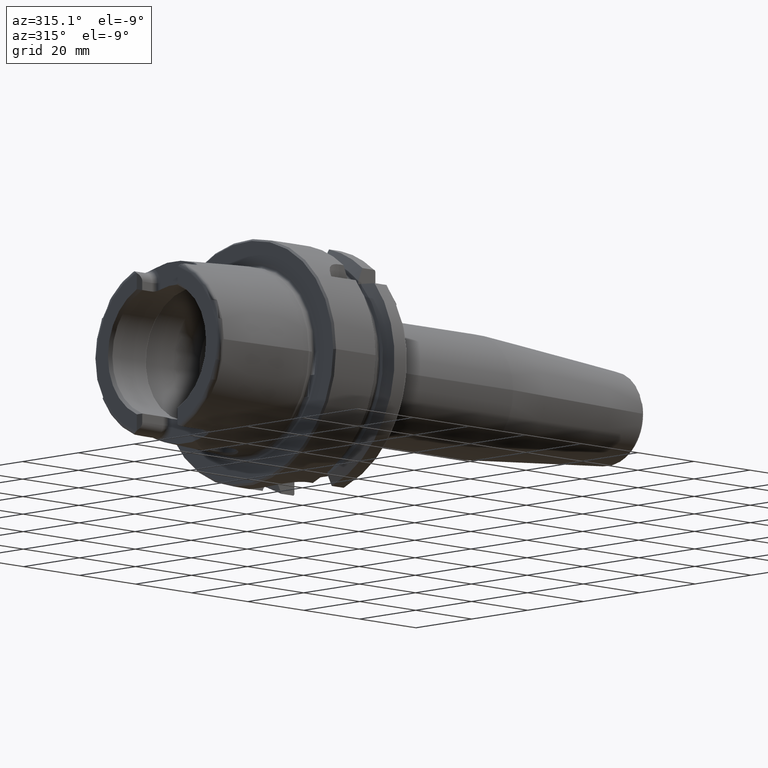
[diagram: clean part render]
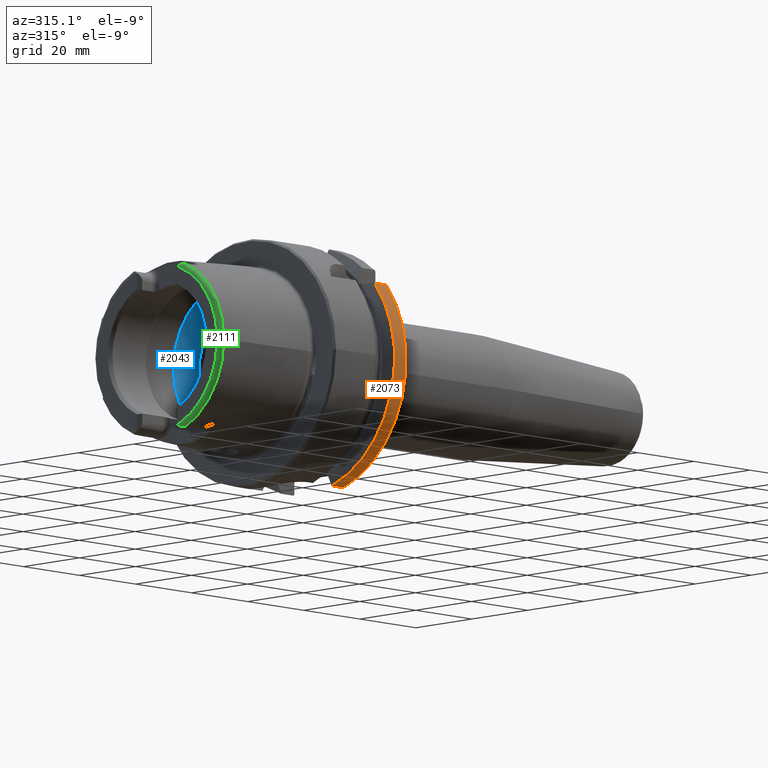
[diagram: same view with three faces highlighted in distinct colors, each labeled with its STEP entity id]
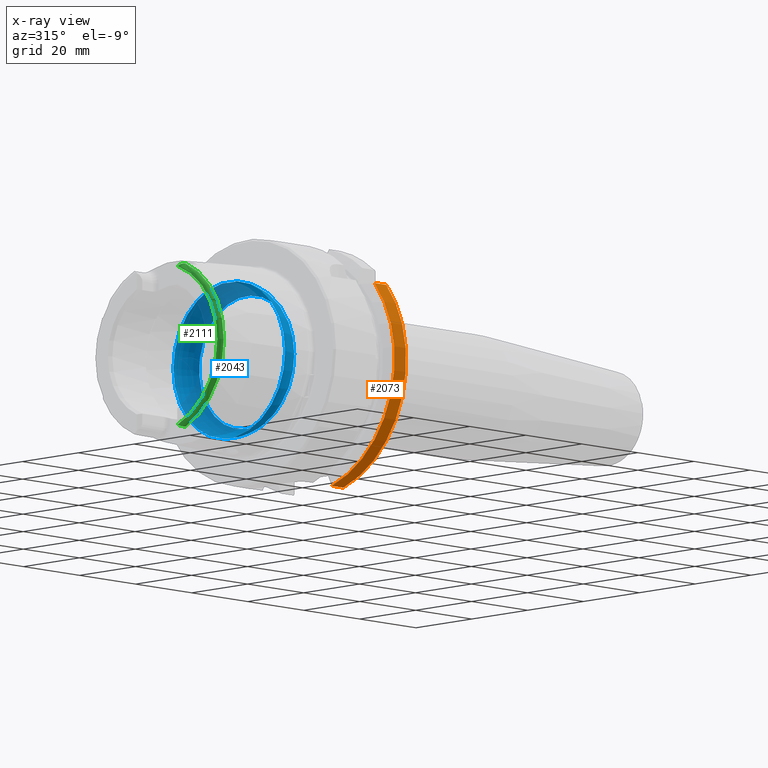
[diagram: x-ray of the same camera — body ghosted, the three highlighted faces saturated]
A machine part, auxiliary view with three faces highlighted in distinct colors.
The next image is the same camera in x-ray (body ghosted, the three faces saturated) — at least one of them is partly hidden behind the body in this view.
Their STEP definitions:

[orange] entity #2073 — the highlighted cylindrical surface (partial cylindrical patch) has radius 31.5 mm, axis along (1, 0, 0).
#198=CYLINDRICAL_SURFACE('',#2301,31.5);
#280=FACE_OUTER_BOUND('',#409,.T.);
#409=EDGE_LOOP('',(#1708,#1709,#1710,#1711));
#518=LINE('',#3898,#628);
#534=LINE('',#4033,#644);
#628=VECTOR('',#2666,10.);
#644=VECTOR('',#2726,10.);
#763=CIRCLE('',#2298,31.5);
#765=CIRCLE('',#2302,31.5);
#927=VERTEX_POINT('',#3893);
#928=VERTEX_POINT('',#3897);
#953=VERTEX_POINT('',#4021);
#954=VERTEX_POINT('',#4032);
#1171=EDGE_CURVE('',#928,#927,#518,.T.);
#1209=EDGE_CURVE('',#954,#953,#534,.T.);
#1254=EDGE_CURVE('',#928,#953,#763,.T.);
#1257=EDGE_CURVE('',#927,#954,#765,.T.);
#1708=ORIENTED_EDGE('',*,*,#1171,.T.);
#1709=ORIENTED_EDGE('',*,*,#1257,.T.);
#1710=ORIENTED_EDGE('',*,*,#1209,.T.);
#1711=ORIENTED_EDGE('',*,*,#1254,.F.);
#2073=ADVANCED_FACE('',(#280),#198,.T.);
#2298=AXIS2_PLACEMENT_3D('',#4238,#2787,#2788);
#2301=AXIS2_PLACEMENT_3D('',#4243,#2794,#2795);
#2302=AXIS2_PLACEMENT_3D('',#4244,#2796,#2797);
#2666=DIRECTION('',(-1.,0.,0.));
#2726=DIRECTION('',(1.,0.,0.));
#2787=DIRECTION('center_axis',(1.,0.,0.));
#2788=DIRECTION('ref_axis',(0.,0.,-1.));
#2794=DIRECTION('center_axis',(1.,0.,0.));
#2795=DIRECTION('ref_axis',(0.,-0.956344671622108,-0.292241114595468));
#2796=DIRECTION('center_axis',(1.,0.,0.));
#2797=DIRECTION('ref_axis',(0.,0.,-1.));
#3893=CARTESIAN_POINT('',(21.3774990747593,-24.3361870472759,20.));
#3897=CARTESIAN_POINT('',(25.5,-24.3361870472759,20.));
#3898=CARTESIAN_POINT('',(23.4387495373797,-24.3361870472759,20.));
#4021=CARTESIAN_POINT('',(25.5,-9.,-30.1869176962472));
#4032=CARTESIAN_POINT('',(21.3774990747593,-9.,-30.1869176962472));
#4033=CARTESIAN_POINT('',(23.4387495373797,-9.,-30.1869176962472));
#4238=CARTESIAN_POINT('Origin',(25.5,0.,0.));
#4243=CARTESIAN_POINT('Origin',(23.4387495373797,0.,0.));
#4244=CARTESIAN_POINT('Origin',(21.3774990747593,0.,0.));

[blue] entity #2043 — the highlighted toroidal blend (fillet) surface has major radius 12 mm and minor (blend) radius 8 mm.
#49=B_SPLINE_CURVE_WITH_KNOTS('',3,(#3600,#3601,#3602,#3603,#3604,#3605,
#3606,#3607,#3608,#3609,#3610,#3611),.UNSPECIFIED.,.F.,.F.,(4,2,2,2,2,4),
(-0.560647090003115,-0.432465132423936,-0.371738630353782,-0.32053783623797,
-0.287500355516274,-0.280385270121909),.UNSPECIFIED.);
#51=B_SPLINE_CURVE_WITH_KNOTS('',3,(#3644,#3645,#3646,#3647,#3648,#3649,
#3650,#3651,#3652,#3653),.UNSPECIFIED.,.F.,.F.,(4,2,2,2,4),(-0.280385270121909,
-0.256917987419631,-0.21744735037608,-0.138661357565599,0.),
 .UNSPECIFIED.);
#54=B_SPLINE_CURVE_WITH_KNOTS('',3,(#3769,#3770,#3771,#3772,#3773,#3774,
#3775,#3776,#3777,#3778,#3779,#3780),.UNSPECIFIED.,.F.,.F.,(4,2,2,2,2,4),
(-0.560647090003256,-0.432465132424011,-0.371738630353825,-0.32053783623799,
-0.287500355516289,-0.280385270121924),.UNSPECIFIED.);
#56=B_SPLINE_CURVE_WITH_KNOTS('',3,(#3813,#3814,#3815,#3816,#3817,#3818,
#3819,#3820,#3821,#3822),.UNSPECIFIED.,.F.,.F.,(4,2,2,2,4),(-0.280385270121924,
-0.256917987419636,-0.217447350376074,-0.138661357565593,0.),
 .UNSPECIFIED.);
#147=TOROIDAL_SURFACE('',#2242,12.,8.);
#250=FACE_OUTER_BOUND('',#379,.T.);
#379=EDGE_LOOP('',(#1545,#1546,#1547,#1548,#1549,#1550,#1551,#1552,#1553,
#1554,#1555));
#731=CIRCLE('',#2237,20.);
#734=CIRCLE('',#2240,20.);
#735=CIRCLE('',#2241,20.);
#736=CIRCLE('',#2243,17.);
#737=CIRCLE('',#2244,17.);
#738=CIRCLE('',#2245,8.);
#907=VERTEX_POINT('',#3597);
#908=VERTEX_POINT('',#3599);
#909=VERTEX_POINT('',#3612);
#912=VERTEX_POINT('',#3767);
#913=VERTEX_POINT('',#3768);
#914=VERTEX_POINT('',#3781);
#915=VERTEX_POINT('',#3825);
#918=VERTEX_POINT('',#3835);
#919=VERTEX_POINT('',#3836);
#1143=EDGE_CURVE('',#908,#907,#49,.T.);
#1145=EDGE_CURVE('',#907,#909,#51,.T.);
#1149=EDGE_CURVE('',#912,#913,#54,.T.);
#1151=EDGE_CURVE('',#913,#914,#56,.T.);
#1153=EDGE_CURVE('',#915,#912,#731,.T.);
#1157=EDGE_CURVE('',#909,#915,#734,.T.);
#1158=EDGE_CURVE('',#914,#908,#735,.T.);
#1159=EDGE_CURVE('',#918,#919,#736,.T.);
#1160=EDGE_CURVE('',#919,#918,#737,.T.);
#1161=EDGE_CURVE('',#919,#907,#738,.T.);
#1545=ORIENTED_EDGE('',*,*,#1159,.F.);
#1546=ORIENTED_EDGE('',*,*,#1160,.F.);
#1547=ORIENTED_EDGE('',*,*,#1161,.T.);
#1548=ORIENTED_EDGE('',*,*,#1145,.T.);
#1549=ORIENTED_EDGE('',*,*,#1157,.T.);
#1550=ORIENTED_EDGE('',*,*,#1153,.T.);
#1551=ORIENTED_EDGE('',*,*,#1149,.T.);
#1552=ORIENTED_EDGE('',*,*,#1151,.T.);
#1553=ORIENTED_EDGE('',*,*,#1158,.T.);
#1554=ORIENTED_EDGE('',*,*,#1143,.T.);
#1555=ORIENTED_EDGE('',*,*,#1161,.F.);
#2043=ADVANCED_FACE('',(#250),#147,.F.);
#2237=AXIS2_PLACEMENT_3D('',#3826,#2629,#2630);
#2240=AXIS2_PLACEMENT_3D('',#3832,#2636,#2637);
#2241=AXIS2_PLACEMENT_3D('',#3833,#2638,#2639);
#2242=AXIS2_PLACEMENT_3D('',#3834,#2640,#2641);
#2243=AXIS2_PLACEMENT_3D('',#3837,#2642,#2643);
#2244=AXIS2_PLACEMENT_3D('',#3838,#2644,#2645);
#2245=AXIS2_PLACEMENT_3D('',#3839,#2646,#2647);
#2629=DIRECTION('center_axis',(-1.,0.,0.));
#2630=DIRECTION('ref_axis',(0.,0.,1.));
#2636=DIRECTION('center_axis',(-1.,0.,0.));
#2637=DIRECTION('ref_axis',(0.,0.,1.));
#2638=DIRECTION('center_axis',(-1.,0.,0.));
#2639=DIRECTION('ref_axis',(0.,0.,1.));
#2640=DIRECTION('center_axis',(-1.,0.,0.));
#2641=DIRECTION('ref_axis',(0.,0.,1.));
#2642=DIRECTION('center_axis',(-1.,0.,0.));
#2643=DIRECTION('ref_axis',(0.,0.,1.));
#2644=DIRECTION('center_axis',(-1.,0.,0.));
#2645=DIRECTION('ref_axis',(0.,0.,1.));
#2646=DIRECTION('center_axis',(0.,1.,-1.22464679914735E-16));
#2647=DIRECTION('ref_axis',(0.,-1.22464679914735E-16,-1.));
#3597=CARTESIAN_POINT('',(-5.25,3.07683831259085E-16,-19.9378825251564));
#3599=CARTESIAN_POINT('',(-6.2449979983984,2.54410376580264,-19.8375284758165));
#3600=CARTESIAN_POINT('Ctrl Pts',(-6.2449979983984,2.54410376580263,-19.8375284758165));
#3601=CARTESIAN_POINT('Ctrl Pts',(-5.9563832733696,2.23156378381208,-19.877610794847));
#3602=CARTESIAN_POINT('Ctrl Pts',(-5.72238184052007,1.87139505615745,-19.9007586679726));
#3603=CARTESIAN_POINT('Ctrl Pts',(-5.47415257397377,1.29299577523533,-19.9221291461079));
#3604=CARTESIAN_POINT('Ctrl Pts',(-5.40951125063364,1.10084807786171,-19.9269865934584));
#3605=CARTESIAN_POINT('Ctrl Pts',(-5.31953029252225,0.738763665580492,-19.9333991732415));
#3606=CARTESIAN_POINT('Ctrl Pts',(-5.28971989928313,0.57048989328573,-19.9353426103026));
#3607=CARTESIAN_POINT('Ctrl Pts',(-5.25970604483208,0.291260075331645,-19.9372753146995));
#3608=CARTESIAN_POINT('Ctrl Pts',(-5.25276504295341,0.181279004510485,-19.9377089305339));
#3609=CARTESIAN_POINT('Ctrl Pts',(-5.25022501552319,0.0474369436209427,
-19.9378684144199));
#3610=CARTESIAN_POINT('Ctrl Pts',(-5.25,0.0237178817918345,-19.9378825251564));
#3611=CARTESIAN_POINT('Ctrl Pts',(-5.25,1.73633857888389E-16,-19.9378825251564));
#3612=CARTESIAN_POINT('',(-6.2449979983984,-2.54410376580264,-19.8375284758165));
#3644=CARTESIAN_POINT('Ctrl Pts',(-5.25,1.73633857888389E-16,-19.9378825251564));
#3645=CARTESIAN_POINT('Ctrl Pts',(-5.25,-0.0782273446147222,-19.9378825251564));
#3646=CARTESIAN_POINT('Ctrl Pts',(-5.25244785081342,-0.15644185230388,-19.9377296492436));
#3647=CARTESIAN_POINT('Ctrl Pts',(-5.26557067654327,-0.365860616871457,
-19.9368989370107));
#3648=CARTESIAN_POINT('Ctrl Pts',(-5.2807081654794,-0.496671474530444,-19.9359382432917));
#3649=CARTESIAN_POINT('Ctrl Pts',(-5.34656166936447,-0.885366242555149,
-19.9315392091305));
#3650=CARTESIAN_POINT('Ctrl Pts',(-5.41752174824152,-1.13897710923821,-19.9266508951874));
#3651=CARTESIAN_POINT('Ctrl Pts',(-5.68473945553282,-1.81246400136134,-19.9044561094296));
#3652=CARTESIAN_POINT('Ctrl Pts',(-5.93280828188796,-2.20603449935731,-19.880884849314));
#3653=CARTESIAN_POINT('Ctrl Pts',(-6.2449979983984,-2.54410376580263,-19.8375284758165));
#3767=CARTESIAN_POINT('',(-6.2449979983984,-2.54410376580264,19.8375284758165));
#3768=CARTESIAN_POINT('',(-5.25,4.81156178856766E-16,19.9378825251564));
#3769=CARTESIAN_POINT('Ctrl Pts',(-6.2449979983984,-2.54410376580264,19.8375284758165));
#3770=CARTESIAN_POINT('Ctrl Pts',(-5.9563832733696,-2.23156378381209,19.877610794847));
#3771=CARTESIAN_POINT('Ctrl Pts',(-5.72238184052007,-1.87139505615746,19.9007586679726));
#3772=CARTESIAN_POINT('Ctrl Pts',(-5.47415257397376,-1.29299577523533,19.9221291461079));
#3773=CARTESIAN_POINT('Ctrl Pts',(-5.40951125063363,-1.10084807786172,19.9269865934584));
#3774=CARTESIAN_POINT('Ctrl Pts',(-5.31953029252225,-0.738763665580501,
19.9333991732415));
#3775=CARTESIAN_POINT('Ctrl Pts',(-5.28971989928313,-0.570489893285745,
19.9353426103026));
#3776=CARTESIAN_POINT('Ctrl Pts',(-5.25970604483207,-0.291260075331669,
19.9372753146995));
#3777=CARTESIAN_POINT('Ctrl Pts',(-5.2527650429534,-0.181279004510531,19.9377089305339));
#3778=CARTESIAN_POINT('Ctrl Pts',(-5.25022501552319,-0.0474369436209401,
19.9378684144199));
#3779=CARTESIAN_POINT('Ctrl Pts',(-5.25,-0.0237178817918311,19.9378825251564));
#3780=CARTESIAN_POINT('Ctrl Pts',(-5.25,5.15920899939407E-16,19.9378825251564));
#3781=CARTESIAN_POINT('',(-6.2449979983984,2.54410376580264,19.8375284758165));
#3813=CARTESIAN_POINT('Ctrl Pts',(-5.25,5.15920899939407E-16,19.9378825251564));
#3814=CARTESIAN_POINT('Ctrl Pts',(-5.25,0.0782273446147462,19.9378825251564));
#3815=CARTESIAN_POINT('Ctrl Pts',(-5.25244785081342,0.156441852303891,19.9377296492436));
#3816=CARTESIAN_POINT('Ctrl Pts',(-5.26557067654326,0.36586061687142,19.9368989370107));
#3817=CARTESIAN_POINT('Ctrl Pts',(-5.28070816547939,0.496671474530425,19.9359382432917));
#3818=CARTESIAN_POINT('Ctrl Pts',(-5.34656166936446,0.885366242555101,19.9315392091305));
#3819=CARTESIAN_POINT('Ctrl Pts',(-5.41752174824151,1.13897710923819,19.9266508951874));
#3820=CARTESIAN_POINT('Ctrl Pts',(-5.68473945553283,1.81246400136138,19.9044561094296));
#3821=CARTESIAN_POINT('Ctrl Pts',(-5.93280828188797,2.20603449935733,19.880884849314));
#3822=CARTESIAN_POINT('Ctrl Pts',(-6.2449979983984,2.54410376580264,19.8375284758165));
#3825=CARTESIAN_POINT('',(-6.2449979983984,-20.,2.44929359829471E-15));
#3826=CARTESIAN_POINT('Origin',(-6.2449979983984,0.,0.));
#3832=CARTESIAN_POINT('Origin',(-6.2449979983984,0.,0.));
#3833=CARTESIAN_POINT('Origin',(-6.2449979983984,0.,0.));
#3834=CARTESIAN_POINT('Origin',(-6.2449979983984,0.,0.));
#3835=CARTESIAN_POINT('',(0.,-17.,2.0818995585505E-15));
#3836=CARTESIAN_POINT('',(0.,-2.0818995585505E-15,-17.));
#3837=CARTESIAN_POINT('Origin',(0.,0.,0.));
#3838=CARTESIAN_POINT('Origin',(0.,0.,0.));
#3839=CARTESIAN_POINT('Origin',(-6.2449979983984,-1.46957615897682E-15,
-12.));

[green] entity #2111 — the highlighted toroidal blend (fillet) surface has major radius 21.576 mm and minor (blend) radius 1.2 mm.
#32=B_SPLINE_CURVE_WITH_KNOTS('',3,(#3176,#3177,#3178,#3179,#3180,#3181,
#3182,#3183,#3184,#3185,#3186,#3187),.UNSPECIFIED.,.F.,.F.,(4,2,2,2,2,4),
(-0.196612183526961,-0.162100751777108,-0.0988537843219417,-0.0492481970353068,
-0.0201985054494333,0.),.UNSPECIFIED.);
#35=B_SPLINE_CURVE_WITH_KNOTS('',3,(#3267,#3268,#3269,#3270,#3271,#3272,
#3273,#3274,#3275,#3276,#3277,#3278),.UNSPECIFIED.,.F.,.F.,(4,2,2,2,2,4),
(-0.440016298339346,-0.413819168091726,-0.38684223146412,-0.314176502280688,
-0.242048966230796,-0.191409762337977),.UNSPECIFIED.);
#163=TOROIDAL_SURFACE('',#2370,21.5760400159857,1.2);
#318=FACE_OUTER_BOUND('',#448,.T.);
#448=EDGE_LOOP('',(#1916,#1917,#1918,#1919,#1920));
#726=CIRCLE('',#2229,22.7745368271334);
#730=CIRCLE('',#2233,22.7745368271334);
#794=CIRCLE('',#2367,21.5760400159857);
#861=VERTEX_POINT('',#3156);
#862=VERTEX_POINT('',#3175);
#881=VERTEX_POINT('',#3264);
#882=VERTEX_POINT('',#3266);
#897=VERTEX_POINT('',#3467);
#1083=EDGE_CURVE('',#862,#861,#32,.T.);
#1108=EDGE_CURVE('',#882,#881,#35,.T.);
#1128=EDGE_CURVE('',#897,#861,#726,.T.);
#1140=EDGE_CURVE('',#882,#897,#730,.T.);
#1316=EDGE_CURVE('',#881,#862,#794,.T.);
#1916=ORIENTED_EDGE('',*,*,#1108,.T.);
#1917=ORIENTED_EDGE('',*,*,#1316,.T.);
#1918=ORIENTED_EDGE('',*,*,#1083,.T.);
#1919=ORIENTED_EDGE('',*,*,#1128,.F.);
#1920=ORIENTED_EDGE('',*,*,#1140,.F.);
#2111=ADVANCED_FACE('',(#318),#163,.T.);
#2229=AXIS2_PLACEMENT_3D('',#3469,#2610,#2611);
#2233=AXIS2_PLACEMENT_3D('',#3573,#2618,#2619);
#2367=AXIS2_PLACEMENT_3D('',#4447,#2945,#2946);
#2370=AXIS2_PLACEMENT_3D('',#4450,#2951,#2952);
#2610=DIRECTION('center_axis',(1.,0.,0.));
#2611=DIRECTION('ref_axis',(0.,0.,-1.));
#2618=DIRECTION('center_axis',(1.,0.,0.));
#2619=DIRECTION('ref_axis',(0.,0.,-1.));
#2945=DIRECTION('center_axis',(1.,0.,0.));
#2946=DIRECTION('ref_axis',(0.,0.,-1.));
#2951=DIRECTION('center_axis',(1.,0.,0.));
#2952=DIRECTION('ref_axis',(0.,0.,-1.));
#3156=CARTESIAN_POINT('',(-30.8600449304182,-9.1175788960984,-20.8698175067219));
#3175=CARTESIAN_POINT('',(-32.,-7.39118810947246,-20.2705658801576));
#3176=CARTESIAN_POINT('Ctrl Pts',(-32.,-7.39118810947247,-20.2705658801576));
#3177=CARTESIAN_POINT('Ctrl Pts',(-32.,-7.51057646079925,-20.3626402436877));
#3178=CARTESIAN_POINT('Ctrl Pts',(-31.9798323447024,-7.63713759811651,-20.4450895592776));
#3179=CARTESIAN_POINT('Ctrl Pts',(-31.8795915966629,-8.00411514663101,-20.6460540241957));
#3180=CARTESIAN_POINT('Ctrl Pts',(-31.7662291944519,-8.24534617868917,-20.7330636375648));
#3181=CARTESIAN_POINT('Ctrl Pts',(-31.5260503396065,-8.62641311167603,-20.8272571305318));
#3182=CARTESIAN_POINT('Ctrl Pts',(-31.4080214744472,-8.77500391332017,-20.8477181028241));
#3183=CARTESIAN_POINT('Ctrl Pts',(-31.2168511506693,-8.95347341138424,-20.8640491182849));
#3184=CARTESIAN_POINT('Ctrl Pts',(-31.1371144343332,-9.01480627610083,-20.8671499279665));
#3185=CARTESIAN_POINT('Ctrl Pts',(-30.9904836833853,-9.08806135889972,-20.8694907892639));
#3186=CARTESIAN_POINT('Ctrl Pts',(-30.9268776870879,-9.10942530024495,-20.8697257132045));
#3187=CARTESIAN_POINT('Ctrl Pts',(-30.8600449304182,-9.11757889609838,-20.8698175067219));
#3264=CARTESIAN_POINT('',(-32.,-7.39118810947246,20.2705658801576));
#3266=CARTESIAN_POINT('',(-30.8600449304182,-9.1175788960984,20.8698175067219));
#3267=CARTESIAN_POINT('Ctrl Pts',(-30.8600449304182,-9.11757889609839,20.8698175067219));
#3268=CARTESIAN_POINT('Ctrl Pts',(-30.9283853966267,-9.1092413596916,20.8697236423942));
#3269=CARTESIAN_POINT('Ctrl Pts',(-30.9933437959442,-9.08709005778456,20.8694809526083));
#3270=CARTESIAN_POINT('Ctrl Pts',(-31.1177754091763,-9.02396510410894,20.8674193162914));
#3271=CARTESIAN_POINT('Ctrl Pts',(-31.1770034834694,-8.98246838908717,20.8654817144325));
#3272=CARTESIAN_POINT('Ctrl Pts',(-31.3775872414353,-8.81520504288704,20.8530880014962));
#3273=CARTESIAN_POINT('Ctrl Pts',(-31.521057678942,-8.63827412284131,20.8318261586711));
#3274=CARTESIAN_POINT('Ctrl Pts',(-31.7694065050575,-8.23592790359805,20.7289177452773));
#3275=CARTESIAN_POINT('Ctrl Pts',(-31.8689043999789,-8.02084936775806,20.6497346714256));
#3276=CARTESIAN_POINT('Ctrl Pts',(-31.9746332690681,-7.66799906728034,20.4648878758955));
#3277=CARTESIAN_POINT('Ctrl Pts',(-32.,-7.52524774054413,20.3739549886328));
#3278=CARTESIAN_POINT('Ctrl Pts',(-32.,-7.39118810947247,20.2705658801576));
#3467=CARTESIAN_POINT('',(-30.8600449304182,-22.7745368271334,-2.78907636274124E-15));
#3469=CARTESIAN_POINT('Origin',(-30.8600449304182,0.,0.));
#3573=CARTESIAN_POINT('Origin',(-30.8600449304182,0.,0.));
#4447=CARTESIAN_POINT('Origin',(-32.,0.,0.));
#4450=CARTESIAN_POINT('Origin',(-30.8,0.,0.));